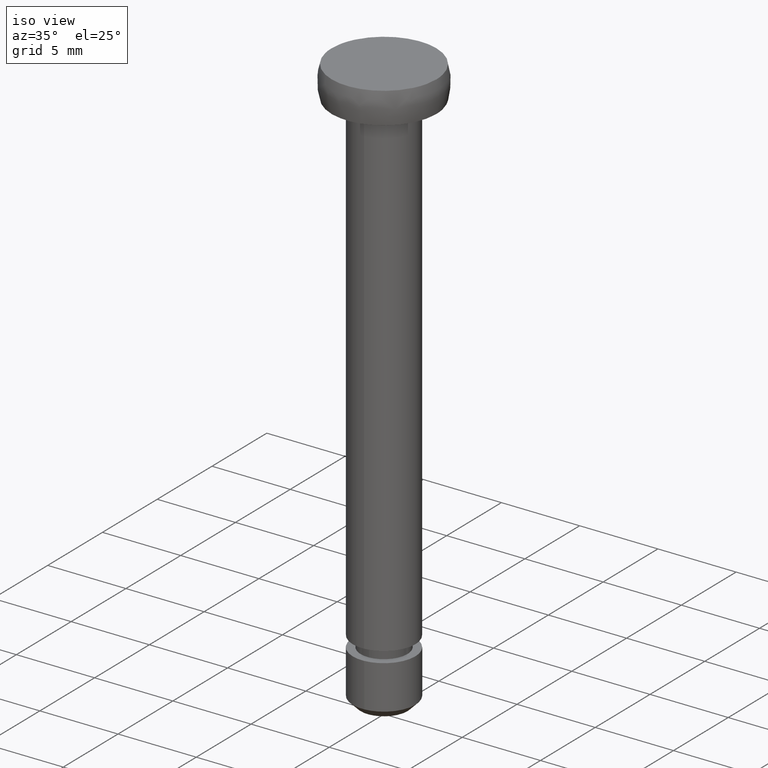
[diagram: clean part render]
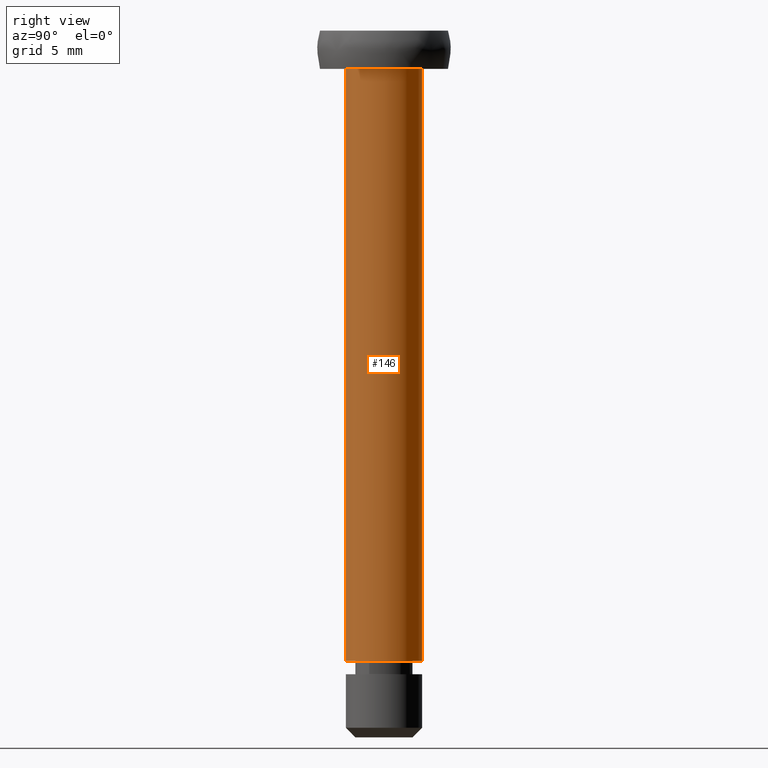
[diagram: tour spotlight — one face highlighted and labeled with its STEP entity id]
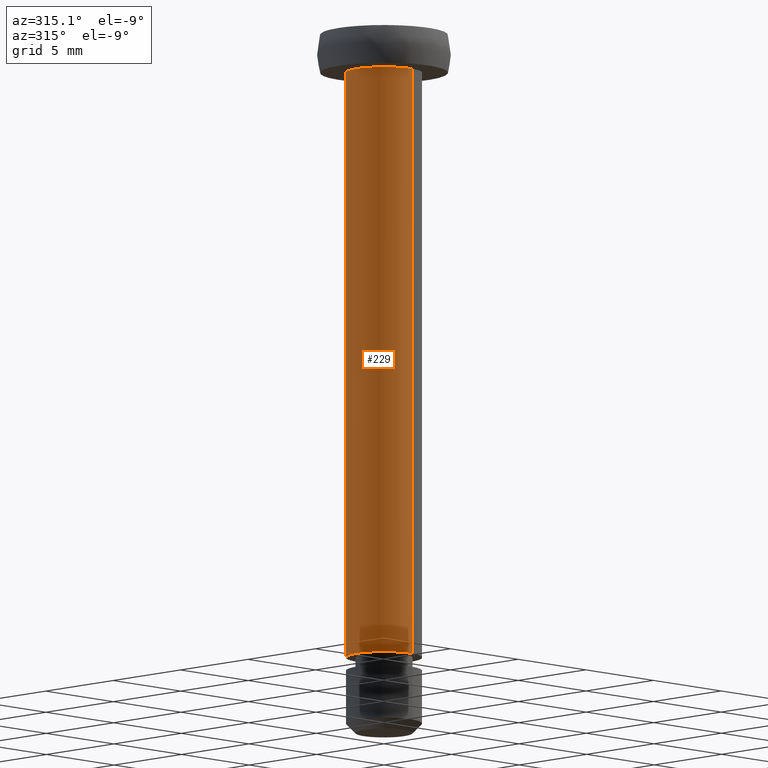
[diagram: tour spotlight — one face highlighted and labeled with its STEP entity id]
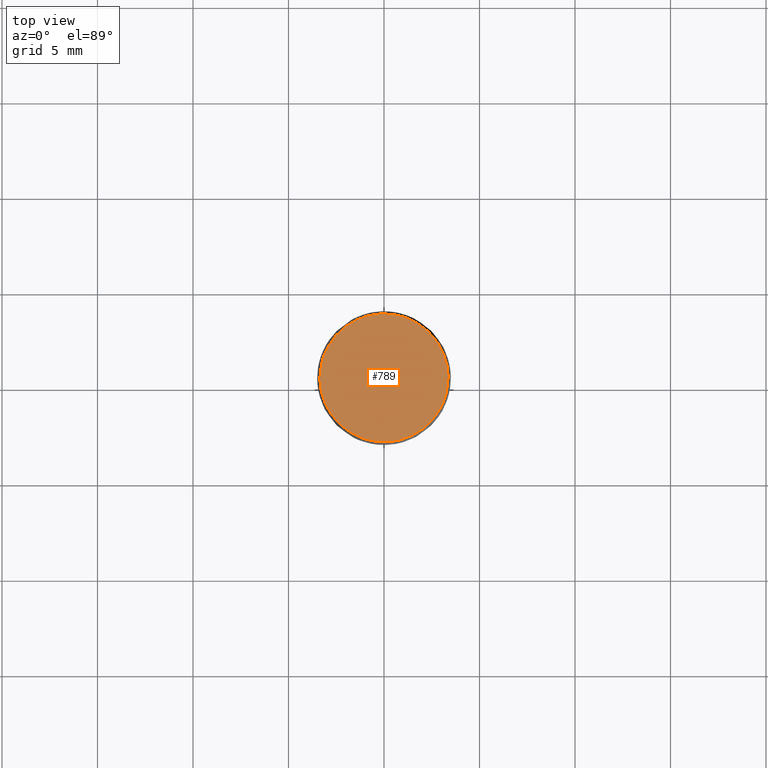
[diagram: tour spotlight — one face highlighted and labeled with its STEP entity id]
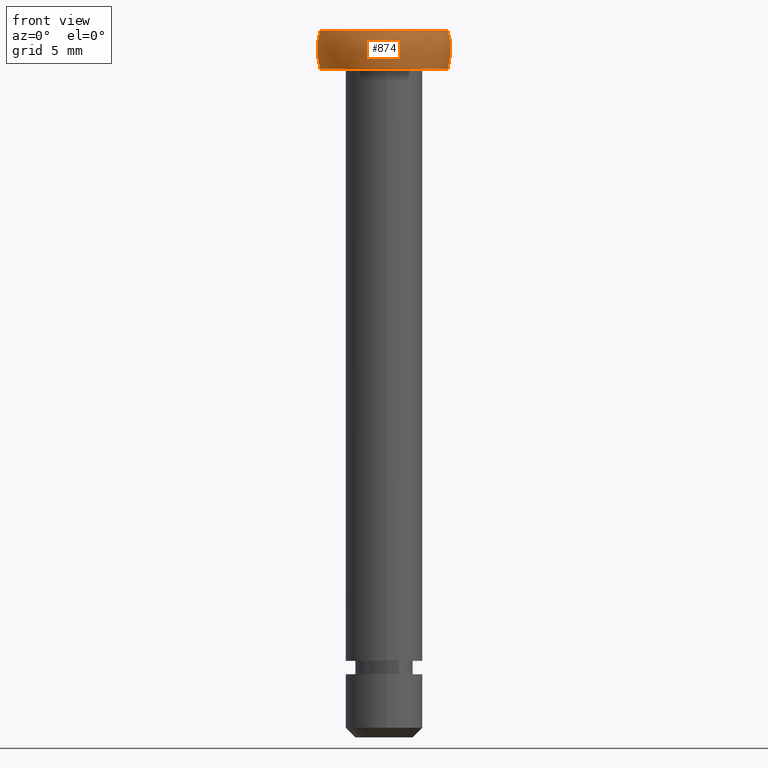
[diagram: tour spotlight — one face highlighted and labeled with its STEP entity id]
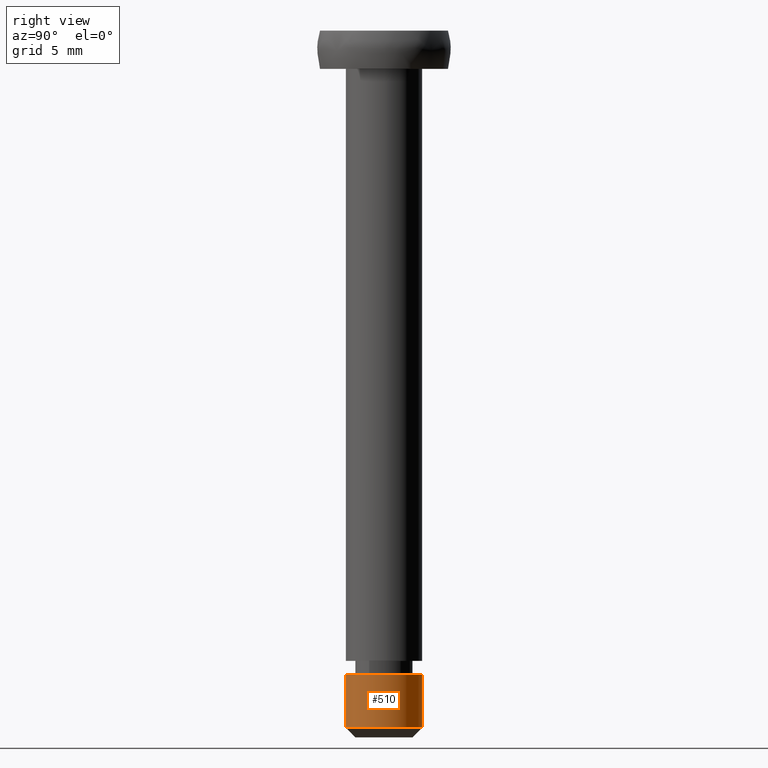
[diagram: tour spotlight — one face highlighted and labeled with its STEP entity id]
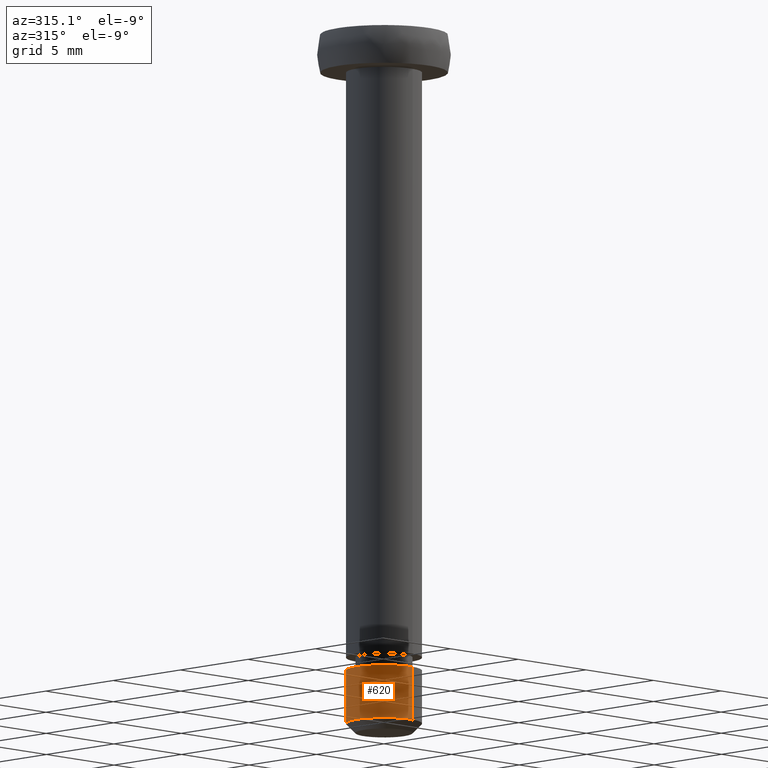
[diagram: tour spotlight — one face highlighted and labeled with its STEP entity id]
A machine part: a face-by-face anatomy tour. The part has 14 B-rep faces; the first image is the clean iso view, then the 6 largest visible faces are spotlighted one at a time (largest first), each with its STEP entity span.

Face 1 — right view, entity #146. In plain terms, the highlighted face is a freeform B-spline surface patch.
Definition (entity closure, byte-faithful):
#44=CARTESIAN_POINT('',(-0.236068469313517,1.986019052727332,35.774999999999999));
#45=CARTESIAN_POINT('',(-0.179229457275955,1.992775230897211,35.775000000000006));
#46=CARTESIAN_POINT('',(-0.122097079069714,1.996269596843733,35.775000000000013));
#47=CARTESIAN_POINT('',(1.874172517774020,2.118366675913447,35.774999999999999));
#48=CARTESIAN_POINT('',(1.996269596843733,0.122097079069714,35.775000000000013));
#49=CARTESIAN_POINT('',(2.118366675913447,-1.874172517774020,35.774999999999999));
#50=CARTESIAN_POINT('',(0.122097079069714,-1.996269596843733,35.775000000000013));
#51=CARTESIAN_POINT('',(-0.236068469313517,1.986019052727332,3.205624999999998));
#52=CARTESIAN_POINT('',(-0.179229457275955,1.992775230897211,3.205624999999998));
#53=CARTESIAN_POINT('',(-0.122097079069714,1.996269596843733,3.205624999999998));
#54=CARTESIAN_POINT('',(1.874172517774020,2.118366675913447,3.205624999999998));
#55=CARTESIAN_POINT('',(1.996269596843733,0.122097079069714,3.205624999999998));
#56=CARTESIAN_POINT('',(2.118366675913447,-1.874172517774020,3.205624999999998));
#57=CARTESIAN_POINT('',(0.122097079069714,-1.996269596843733,3.205624999999998));
#65=(BOUNDED_SURFACE()B_SPLINE_SURFACE(2,1,((#44,#51),(#45,#52),(#46,#53),(#47,#54),(#48,#55),(#49,#56),(#50,#57)),.UNSPECIFIED.,.F.,.F.,.U.)B_SPLINE_SURFACE_WITH_KNOTS((3,2,2,3),(2,2),(0.0,0.132548339959391,3.446256838944149,6.759965337928908),(0.0,32.569375000000022),.UNSPECIFIED.)GEOMETRIC_REPRESENTATION_ITEM()RATIONAL_B_SPLINE_SURFACE(((0.977505800795127,0.977505800795127),(0.988284271247462,0.988284271247462),(1.0,1.0),(0.707106781186548,0.707106781186548),(1.0,1.0),(0.707106781186548,0.707106781186548),(1.0,1.0)))REPRESENTATION_ITEM('')SURFACE());
#66=CARTESIAN_POINT('',(-0.236068469374056,1.986019052720137,35.0));
#67=VERTEX_POINT('',#66);
#68=CARTESIAN_POINT('',(2.0,0.0,35.0));
#69=VERTEX_POINT('',#68);
#70=CARTESIAN_POINT('',(-0.236068469374056,1.986019052720137,35.0));
#71=CARTESIAN_POINT('',(-0.118448239364999,2.000000000000000,35.000000000000007));
#72=CARTESIAN_POINT('',(0.0,2.0,35.0));
#73=CARTESIAN_POINT('',(2.000000000000000,2.000000000000000,34.999999999999993));
#74=CARTESIAN_POINT('',(2.0,0.0,35.0));
#82=(BOUNDED_CURVE()B_SPLINE_CURVE(2,(#70,#71,#72,#73,#74),.UNSPECIFIED.,.F.,.U.)B_SPLINE_CURVE_WITH_KNOTS((3,2,3),(0.229562473505341,0.250000000000000,0.500000000000000),.UNSPECIFIED.)CURVE()GEOMETRIC_REPRESENTATION_ITEM()RATIONAL_B_SPLINE_CURVE((0.956026754167691,0.976055948321576,1.0,0.707106781186548,1.0))REPRESENTATION_ITEM(''));
#83=EDGE_CURVE('',#67,#69,#82,.T.);
#84=ORIENTED_EDGE('',*,*,#83,.T.);
#85=CARTESIAN_POINT('',(0.122094911865677,-1.996269729393249,35.000000000000007));
#86=VERTEX_POINT('',#85);
#87=CARTESIAN_POINT('',(2.0,0.0,35.0));
#88=CARTESIAN_POINT('',(1.999999999999999,-1.881414180140796,34.999999999999993));
#89=CARTESIAN_POINT('',(0.122094911865677,-1.996269729393250,35.000000000000007));
#97=(BOUNDED_CURVE()B_SPLINE_CURVE(2,(#87,#88,#89),.UNSPECIFIED.,.F.,.U.)B_SPLINE_CURVE_WITH_KNOTS((3,3),(0.500000000000000,0.739333149563436),.UNSPECIFIED.)CURVE()GEOMETRIC_REPRESENTATION_ITEM()RATIONAL_B_SPLINE_CURVE((1.0,0.719603773822415,0.976072443139095))REPRESENTATION_ITEM(''));
#98=EDGE_CURVE('',#69,#86,#97,.T.);
#99=ORIENTED_EDGE('',*,*,#98,.T.);
#100=CARTESIAN_POINT('',(0.122094938045630,-1.996269727792072,4.000000000000001));
#101=VERTEX_POINT('',#100);
#102=CARTESIAN_POINT('',(0.122094911865677,-1.996269729393249,35.000000000000007));
#103=CARTESIAN_POINT('',(0.122094938045630,-1.996269727792072,4.000000000000001));
#104=QUASI_UNIFORM_CURVE('',1,(#102,#103),.UNSPECIFIED.,.F.,.U.);
#105=EDGE_CURVE('',#86,#101,#104,.T.);
#106=ORIENTED_EDGE('',*,*,#105,.T.);
#107=CARTESIAN_POINT('',(2.0,0.0,4.0));
#108=VERTEX_POINT('',#107);
#109=CARTESIAN_POINT('',(2.0,0.0,4.0));
#110=CARTESIAN_POINT('',(2.000000000000000,-1.881414155421005,4.000000000000001));
#111=CARTESIAN_POINT('',(0.122094938045630,-1.996269727792072,4.000000000000001));
#119=(BOUNDED_CURVE()B_SPLINE_CURVE(2,(#109,#110,#111),.UNSPECIFIED.,.F.,.U.)B_SPLINE_CURVE_WITH_KNOTS((3,3),(0.500000000000000,0.739333147300582),.UNSPECIFIED.)CURVE()GEOMETRIC_REPRESENTATION_ITEM()RATIONAL_B_SPLINE_CURVE((1.0,0.719603776473514,0.976072438289359))REPRESENTATION_ITEM(''));
#120=EDGE_CURVE('',#108,#101,#119,.T.);
#121=ORIENTED_EDGE('',*,*,#120,.F.);
#122=CARTESIAN_POINT('',(-0.236068469374056,1.986019052720137,3.999999999999999));
#123=VERTEX_POINT('',#122);
#124=CARTESIAN_POINT('',(-0.236068469374056,1.986019052720137,3.999999999999999));
#125=CARTESIAN_POINT('',(-0.118448239364999,2.000000000000000,4.000000000000001));
#126=CARTESIAN_POINT('',(0.0,2.0,4.0));
#127=CARTESIAN_POINT('',(2.000000000000000,2.000000000000000,4.000000000000000));
#128=CARTESIAN_POINT('',(2.0,0.0,4.0));
#136=(BOUNDED_CURVE()B_SPLINE_CURVE(2,(#124,#125,#126,#127,#128),.UNSPECIFIED.,.F.,.U.)B_SPLINE_CURVE_WITH_KNOTS((3,2,3),(0.229562473505341,0.250000000000000,0.500000000000000),.UNSPECIFIED.)CURVE()GEOMETRIC_REPRESENTATION_ITEM()RATIONAL_B_SPLINE_CURVE((0.956026754167691,0.976055948321576,1.0,0.707106781186548,1.0))REPRESENTATION_ITEM(''));
#137=EDGE_CURVE('',#123,#108,#136,.T.);
#138=ORIENTED_EDGE('',*,*,#137,.F.);
#139=CARTESIAN_POINT('',(-0.236068469374056,1.986019052720137,35.0));
#140=CARTESIAN_POINT('',(-0.236068469374056,1.986019052720137,3.999999999999999));
#141=QUASI_UNIFORM_CURVE('',1,(#139,#140),.UNSPECIFIED.,.F.,.U.);
#142=EDGE_CURVE('',#67,#123,#141,.T.);
#143=ORIENTED_EDGE('',*,*,#142,.F.);
#144=EDGE_LOOP('',(#84,#99,#106,#121,#138,#143));
#145=FACE_OUTER_BOUND('',#144,.T.);
#146=ADVANCED_FACE('',(#145),#65,.T.);

Face 2 — auxiliary view, entity #229. In plain terms, the highlighted face is a freeform B-spline surface patch.
Definition (entity closure, byte-faithful):
#66=CARTESIAN_POINT('',(-0.236068469374056,1.986019052720137,35.0));
#67=VERTEX_POINT('',#66);
#85=CARTESIAN_POINT('',(0.122094911865677,-1.996269729393249,35.000000000000007));
#86=VERTEX_POINT('',#85);
#100=CARTESIAN_POINT('',(0.122094938045630,-1.996269727792072,4.000000000000001));
#101=VERTEX_POINT('',#100);
#102=CARTESIAN_POINT('',(0.122094911865677,-1.996269729393249,35.000000000000007));
#103=CARTESIAN_POINT('',(0.122094938045630,-1.996269727792072,4.000000000000001));
#104=QUASI_UNIFORM_CURVE('',1,(#102,#103),.UNSPECIFIED.,.F.,.U.);
#105=EDGE_CURVE('',#86,#101,#104,.T.);
#122=CARTESIAN_POINT('',(-0.236068469374056,1.986019052720137,3.999999999999999));
#123=VERTEX_POINT('',#122);
#139=CARTESIAN_POINT('',(-0.236068469374056,1.986019052720137,35.0));
#140=CARTESIAN_POINT('',(-0.236068469374056,1.986019052720137,3.999999999999999));
#141=QUASI_UNIFORM_CURVE('',1,(#139,#140),.UNSPECIFIED.,.F.,.U.);
#142=EDGE_CURVE('',#67,#123,#141,.T.);
#147=CARTESIAN_POINT('',(0.122097079069714,-1.996269596843733,35.775000000000013));
#148=CARTESIAN_POINT('',(-1.874172517774020,-2.118366675913447,35.774999999999999));
#149=CARTESIAN_POINT('',(-1.996269596843733,-0.122097079069714,35.775000000000013));
#150=CARTESIAN_POINT('',(-2.111572393465055,1.763086981679002,35.775000000000013));
#151=CARTESIAN_POINT('',(-0.236068469313517,1.986019052727332,35.774999999999999));
#152=CARTESIAN_POINT('',(0.122097079069714,-1.996269596843733,3.205624999999998));
#153=CARTESIAN_POINT('',(-1.874172517774020,-2.118366675913447,3.205624999999998));
#154=CARTESIAN_POINT('',(-1.996269596843733,-0.122097079069714,3.205624999999998));
#155=CARTESIAN_POINT('',(-2.111572393465055,1.763086981679002,3.205624999999998));
#156=CARTESIAN_POINT('',(-0.236068469313517,1.986019052727332,3.205624999999998));
#164=(BOUNDED_SURFACE()B_SPLINE_SURFACE(2,1,((#147,#152),(#148,#153),(#149,#154),(#150,#155),(#151,#156)),.UNSPECIFIED.,.F.,.F.,.U.)B_SPLINE_SURFACE_WITH_KNOTS((3,2,3),(2,2),(0.0,3.313708498984759,6.494868658010128),(0.0,32.569375000000008),.UNSPECIFIED.)GEOMETRIC_REPRESENTATION_ITEM()RATIONAL_B_SPLINE_SURFACE(((1.0,1.0),(0.707106781186548,0.707106781186548),(1.0,1.0),(0.718822509939086,0.718822509939086),(0.977505800795127,0.977505800795127)))REPRESENTATION_ITEM('')SURFACE());
#165=CARTESIAN_POINT('',(-2.0,0.0,35.0));
#166=VERTEX_POINT('',#165);
#167=CARTESIAN_POINT('',(-2.0,0.0,35.0));
#168=CARTESIAN_POINT('',(-2.000000000000000,1.776349051793678,34.999999999999993));
#169=CARTESIAN_POINT('',(-0.236068469374056,1.986019052720137,35.000000000000007));
#177=(BOUNDED_CURVE()B_SPLINE_CURVE(2,(#167,#168,#169),.UNSPECIFIED.,.F.,.U.)B_SPLINE_CURVE_WITH_KNOTS((3,3),(0.0,0.229562473505341),.UNSPECIFIED.)CURVE()GEOMETRIC_REPRESENTATION_ITEM()RATIONAL_B_SPLINE_CURVE((1.0,0.731050832864971,0.956026754167691))REPRESENTATION_ITEM(''));
#178=EDGE_CURVE('',#166,#67,#177,.T.);
#179=ORIENTED_EDGE('',*,*,#178,.T.);
#180=ORIENTED_EDGE('',*,*,#142,.T.);
#181=CARTESIAN_POINT('',(-2.0,0.0,4.0));
#182=VERTEX_POINT('',#181);
#183=CARTESIAN_POINT('',(-2.0,0.0,4.0));
#184=CARTESIAN_POINT('',(-2.000000000000000,1.776349051793678,4.0));
#185=CARTESIAN_POINT('',(-0.236068469374056,1.986019052720137,3.999999999999999));
#193=(BOUNDED_CURVE()B_SPLINE_CURVE(2,(#183,#184,#185),.UNSPECIFIED.,.F.,.U.)B_SPLINE_CURVE_WITH_KNOTS((3,3),(0.0,0.229562473505341),.UNSPECIFIED.)CURVE()GEOMETRIC_REPRESENTATION_ITEM()RATIONAL_B_SPLINE_CURVE((1.0,0.731050832864971,0.956026754167691))REPRESENTATION_ITEM(''));
#194=EDGE_CURVE('',#182,#123,#193,.T.);
#195=ORIENTED_EDGE('',*,*,#194,.F.);
#196=CARTESIAN_POINT('',(0.122094938045630,-1.996269727792072,4.000000000000001));
#197=CARTESIAN_POINT('',(0.061104453083612,-2.000000000000000,4.000000000000001));
#198=CARTESIAN_POINT('',(0.0,-2.0,4.0));
#199=CARTESIAN_POINT('',(-2.000000000000000,-2.000000000000000,4.000000000000000));
#200=CARTESIAN_POINT('',(-2.0,0.0,4.0));
#208=(BOUNDED_CURVE()B_SPLINE_CURVE(2,(#196,#197,#198,#199,#200),.UNSPECIFIED.,.F.,.U.)B_SPLINE_CURVE_WITH_KNOTS((3,2,3),(0.739333147300582,0.750000000000000,1.0),.UNSPECIFIED.)CURVE()GEOMETRIC_REPRESENTATION_ITEM()RATIONAL_B_SPLINE_CURVE((0.976072438289359,0.987503004713034,1.0,0.707106781186548,1.0))REPRESENTATION_ITEM(''));
#209=EDGE_CURVE('',#101,#182,#208,.T.);
#210=ORIENTED_EDGE('',*,*,#209,.F.);
#211=ORIENTED_EDGE('',*,*,#105,.F.);
#212=CARTESIAN_POINT('',(0.122094911865677,-1.996269729393250,35.000000000000007));
#213=CARTESIAN_POINT('',(0.061104439956935,-2.000000000000000,35.0));
#214=CARTESIAN_POINT('',(0.0,-2.0,35.0));
#215=CARTESIAN_POINT('',(-2.000000000000000,-2.000000000000000,34.999999999999993));
#216=CARTESIAN_POINT('',(-2.0,0.0,35.0));
#224=(BOUNDED_CURVE()B_SPLINE_CURVE(2,(#212,#213,#214,#215,#216),.UNSPECIFIED.,.F.,.U.)B_SPLINE_CURVE_WITH_KNOTS((3,2,3),(0.739333149563436,0.750000000000000,1.0),.UNSPECIFIED.)CURVE()GEOMETRIC_REPRESENTATION_ITEM()RATIONAL_B_SPLINE_CURVE((0.976072443139095,0.987503007364133,1.0,0.707106781186548,1.0))REPRESENTATION_ITEM(''));
#225=EDGE_CURVE('',#86,#166,#224,.T.);
#226=ORIENTED_EDGE('',*,*,#225,.T.);
#227=EDGE_LOOP('',(#179,#180,#195,#210,#211,#226));
#228=FACE_OUTER_BOUND('',#227,.T.);
#229=ADVANCED_FACE('',(#228),#164,.T.);

Face 3 — top view, entity #789. In plain terms, the highlighted face is a freeform B-spline surface patch.
Definition (entity closure, byte-faithful):
#748=CARTESIAN_POINT('',(-3.689176669006852,-3.689176669006838,37.000000011736653));
#749=CARTESIAN_POINT('',(3.689176908910919,-3.689176669006838,37.000000011736653));
#750=CARTESIAN_POINT('',(-3.689176669006852,3.689176908910905,37.000000011736653));
#751=CARTESIAN_POINT('',(3.689176908910919,3.689176908910905,37.000000011736653));
#752=B_SPLINE_SURFACE_WITH_KNOTS('',1,1,((#748,#750),(#749,#751)),.UNSPECIFIED.,.F.,.F.,.U.,(2,2),(2,2),(0.0,7.378353577917771),(0.0,7.378353577917744),.UNSPECIFIED.);
#753=CARTESIAN_POINT('',(3.354101959251270,0.0,37.000000023473397));
#754=VERTEX_POINT('',#753);
#755=CARTESIAN_POINT('',(-3.354101959251270,0.0,37.000000023473397));
#756=VERTEX_POINT('',#755);
#757=CARTESIAN_POINT('',(3.354101959251270,0.0,37.000000023473397));
#758=CARTESIAN_POINT('',(3.354101959251270,-3.354101959251270,37.000000023473390));
#759=CARTESIAN_POINT('',(0.0,-3.354101959251270,37.000000023473397));
#760=CARTESIAN_POINT('',(-3.354101959251270,-3.354101959251270,37.000000023473390));
#761=CARTESIAN_POINT('',(-3.354101959251270,0.0,37.000000023473397));
#769=(BOUNDED_CURVE()B_SPLINE_CURVE(2,(#757,#758,#759,#760,#761),.UNSPECIFIED.,.F.,.U.)B_SPLINE_CURVE_WITH_KNOTS((3,2,3),(0.500000000000000,0.750000000000000,1.0),.UNSPECIFIED.)CURVE()GEOMETRIC_REPRESENTATION_ITEM()RATIONAL_B_SPLINE_CURVE((1.0,0.707106781186547,1.0,0.707106781186547,1.0))REPRESENTATION_ITEM(''));
#770=EDGE_CURVE('',#754,#756,#769,.T.);
#771=ORIENTED_EDGE('',*,*,#770,.F.);
#772=CARTESIAN_POINT('',(-3.354101959251270,0.0,37.000000023473397));
#773=CARTESIAN_POINT('',(-3.354101959251270,3.354101959251270,37.000000023473390));
#774=CARTESIAN_POINT('',(0.0,3.354101959251270,37.000000023473397));
#775=CARTESIAN_POINT('',(3.354101959251270,3.354101959251270,37.000000023473390));
#776=CARTESIAN_POINT('',(3.354101959251270,0.0,37.000000023473397));
#784=(BOUNDED_CURVE()B_SPLINE_CURVE(2,(#772,#773,#774,#775,#776),.UNSPECIFIED.,.F.,.U.)B_SPLINE_CURVE_WITH_KNOTS((3,2,3),(0.0,0.250000000000000,0.500000000000000),.UNSPECIFIED.)CURVE()GEOMETRIC_REPRESENTATION_ITEM()RATIONAL_B_SPLINE_CURVE((1.0,0.707106781186547,1.0,0.707106781186547,1.0))REPRESENTATION_ITEM(''));
#785=EDGE_CURVE('',#756,#754,#784,.T.);
#786=ORIENTED_EDGE('',*,*,#785,.F.);
#787=EDGE_LOOP('',(#771,#786));
#788=FACE_OUTER_BOUND('',#787,.T.);
#789=ADVANCED_FACE('',(#788),#752,.T.);

Face 4 — front view, entity #874. In plain terms, the highlighted face is a freeform B-spline surface patch.
Definition (entity closure, byte-faithful):
#753=CARTESIAN_POINT('',(3.354101959251270,0.0,37.000000023473397));
#754=VERTEX_POINT('',#753);
#755=CARTESIAN_POINT('',(-3.354101959251270,0.0,37.000000023473397));
#756=VERTEX_POINT('',#755);
#757=CARTESIAN_POINT('',(3.354101959251270,0.0,37.000000023473397));
#758=CARTESIAN_POINT('',(3.354101959251270,-3.354101959251270,37.000000023473390));
#759=CARTESIAN_POINT('',(0.0,-3.354101959251270,37.000000023473397));
#760=CARTESIAN_POINT('',(-3.354101959251270,-3.354101959251270,37.000000023473390));
#761=CARTESIAN_POINT('',(-3.354101959251270,0.0,37.000000023473397));
#769=(BOUNDED_CURVE()B_SPLINE_CURVE(2,(#757,#758,#759,#760,#761),.UNSPECIFIED.,.F.,.U.)B_SPLINE_CURVE_WITH_KNOTS((3,2,3),(0.500000000000000,0.750000000000000,1.0),.UNSPECIFIED.)CURVE()GEOMETRIC_REPRESENTATION_ITEM()RATIONAL_B_SPLINE_CURVE((1.0,0.707106781186547,1.0,0.707106781186547,1.0))REPRESENTATION_ITEM(''));
#770=EDGE_CURVE('',#754,#756,#769,.T.);
#772=CARTESIAN_POINT('',(-3.354101959251270,0.0,37.000000023473397));
#773=CARTESIAN_POINT('',(-3.354101959251270,3.354101959251270,37.000000023473390));
#774=CARTESIAN_POINT('',(0.0,3.354101959251270,37.000000023473397));
#775=CARTESIAN_POINT('',(3.354101959251270,3.354101959251270,37.000000023473390));
#776=CARTESIAN_POINT('',(3.354101959251270,0.0,37.000000023473397));
#784=(BOUNDED_CURVE()B_SPLINE_CURVE(2,(#772,#773,#774,#775,#776),.UNSPECIFIED.,.F.,.U.)B_SPLINE_CURVE_WITH_KNOTS((3,2,3),(0.0,0.250000000000000,0.500000000000000),.UNSPECIFIED.)CURVE()GEOMETRIC_REPRESENTATION_ITEM()RATIONAL_B_SPLINE_CURVE((1.0,0.707106781186547,1.0,0.707106781186547,1.0))REPRESENTATION_ITEM(''));
#785=EDGE_CURVE('',#756,#754,#784,.T.);
#790=CARTESIAN_POINT('',(-1.997924539567871,1.997924539567871,38.065573786720051));
#791=CARTESIAN_POINT('',(-1.870180005142694,2.493573340190259,37.709718689035888));
#792=CARTESIAN_POINT('',(-0.829070728898847,3.316282915595388,37.119047641403220));
#793=CARTESIAN_POINT('',(0.829070728898847,3.316282915595388,37.119047641403220));
#794=CARTESIAN_POINT('',(1.870180005142694,2.493573340190259,37.709718689035888));
#795=CARTESIAN_POINT('',(1.997924539567871,1.997924539567871,38.065573786720051));
#796=CARTESIAN_POINT('',(-2.493573340190259,1.870180005142694,37.709718689035888));
#797=CARTESIAN_POINT('',(-2.487212186696541,2.487212186696541,37.119047641403220));
#798=CARTESIAN_POINT('',(-1.237293375010815,3.711880125032445,35.946700532509595));
#799=CARTESIAN_POINT('',(1.237293375010815,3.711880125032445,35.946700532509595));
#800=CARTESIAN_POINT('',(2.487212186696541,2.487212186696541,37.119047641403220));
#801=CARTESIAN_POINT('',(2.493573340190259,1.870180005142694,37.709718689035888));
#802=CARTESIAN_POINT('',(-3.316282915595388,0.829070728898847,37.119047641403220));
#803=CARTESIAN_POINT('',(-3.711880125032445,1.237293375010815,35.946700532509595));
#804=CARTESIAN_POINT('',(-2.437467965848872,2.437467965848872,32.500000000000000));
#805=CARTESIAN_POINT('',(2.437467965848872,2.437467965848872,32.500000000000000));
#806=CARTESIAN_POINT('',(3.711880125032445,1.237293375010815,35.946700532509595));
#807=CARTESIAN_POINT('',(3.316282915595388,0.829070728898847,37.119047641403220));
#808=CARTESIAN_POINT('',(-3.316282915595388,-0.829070728898847,37.119047641403220));
#809=CARTESIAN_POINT('',(-3.711880125032445,-1.237293375010815,35.946700532509595));
#810=CARTESIAN_POINT('',(-2.437467965848872,-2.437467965848872,32.500000000000000));
#811=CARTESIAN_POINT('',(2.437467965848872,-2.437467965848872,32.500000000000000));
#812=CARTESIAN_POINT('',(3.711880125032445,-1.237293375010815,35.946700532509595));
#813=CARTESIAN_POINT('',(3.316282915595388,-0.829070728898847,37.119047641403220));
#814=CARTESIAN_POINT('',(-2.493573340190259,-1.870180005142694,37.709718689035888));
#815=CARTESIAN_POINT('',(-2.487212186696541,-2.487212186696541,37.119047641403220));
#816=CARTESIAN_POINT('',(-1.237293375010815,-3.711880125032445,35.946700532509595));
#817=CARTESIAN_POINT('',(1.237293375010815,-3.711880125032445,35.946700532509595));
#818=CARTESIAN_POINT('',(2.487212186696541,-2.487212186696541,37.119047641403220));
#819=CARTESIAN_POINT('',(2.493573340190259,-1.870180005142694,37.709718689035888));
#820=CARTESIAN_POINT('',(-1.997924539567871,-1.997924539567871,38.065573786720051));
#821=CARTESIAN_POINT('',(-1.870180005142694,-2.493573340190259,37.709718689035888));
#822=CARTESIAN_POINT('',(-0.829070728898847,-3.316282915595388,37.119047641403220));
#823=CARTESIAN_POINT('',(0.829070728898847,-3.316282915595388,37.119047641403220));
#824=CARTESIAN_POINT('',(1.870180005142694,-2.493573340190259,37.709718689035888));
#825=CARTESIAN_POINT('',(1.997924539567871,-1.997924539567871,38.065573786720051));
#833=(BOUNDED_SURFACE()B_SPLINE_SURFACE(2,2,((#790,#796,#802,#808,#814,#820),(#791,#797,#803,#809,#815,#821),(#792,#798,#804,#810,#816,#822),(#793,#799,#805,#811,#817,#823),(#794,#800,#806,#812,#818,#824),(#795,#801,#807,#813,#819,#825)),.UNSPECIFIED.,.F.,.F.,.U.)B_SPLINE_SURFACE_WITH_KNOTS((3,1,1,1,3),(3,1,1,1,3),(0.0,3.923489672562895,7.846979345125789,11.770469017688690,15.693958690251581),(0.0,3.923489672562895,7.846979345125789,11.770469017688690,15.693958690251581),.UNSPECIFIED.)GEOMETRIC_REPRESENTATION_ITEM()RATIONAL_B_SPLINE_SURFACE(((4.880000055209430,3.910000041407073,2.940000027604715,2.940000027604715,3.910000041407073,4.880000055209430),(3.910000041407073,2.940000027604715,1.970000013802358,1.970000013802358,2.940000027604715,3.910000041407073),(2.940000027604715,1.970000013802358,1.0,1.0,1.970000013802358,2.940000027604715),(2.940000027604715,1.970000013802358,1.0,1.0,1.970000013802358,2.940000027604715),(3.910000041407073,2.940000027604715,1.970000013802358,1.970000013802358,2.940000027604715,3.910000041407073),(4.880000055209430,3.910000041407073,2.940000027604715,2.940000027604715,3.910000041407073,4.880000055209430)))REPRESENTATION_ITEM('')SURFACE());
#834=ORIENTED_EDGE('',*,*,#785,.T.);
#835=ORIENTED_EDGE('',*,*,#770,.T.);
#836=EDGE_LOOP('',(#834,#835));
#837=FACE_OUTER_BOUND('',#836,.T.);
#838=CARTESIAN_POINT('',(-3.354101000000000,0.0,35.0));
#839=VERTEX_POINT('',#838);
#840=CARTESIAN_POINT('',(3.354101000000000,0.0,35.0));
#841=VERTEX_POINT('',#840);
#842=CARTESIAN_POINT('',(-3.354101000000000,0.0,35.0));
#843=CARTESIAN_POINT('',(-3.354101000000000,3.354101000000000,35.0));
#844=CARTESIAN_POINT('',(0.0,3.354101000000000,35.0));
#845=CARTESIAN_POINT('',(3.354101000000000,3.354101000000000,35.0));
#846=CARTESIAN_POINT('',(3.354101000000000,0.0,35.0));
#854=(BOUNDED_CURVE()B_SPLINE_CURVE(2,(#842,#843,#844,#845,#846),.UNSPECIFIED.,.F.,.U.)B_SPLINE_CURVE_WITH_KNOTS((3,2,3),(0.0,0.250000000000000,0.500000000000000),.UNSPECIFIED.)CURVE()GEOMETRIC_REPRESENTATION_ITEM()RATIONAL_B_SPLINE_CURVE((1.0,0.707106781186547,1.0,0.707106781186547,1.0))REPRESENTATION_ITEM(''));
#855=EDGE_CURVE('',#839,#841,#854,.T.);
#856=ORIENTED_EDGE('',*,*,#855,.F.);
#857=CARTESIAN_POINT('',(3.354101000000000,0.0,35.0));
#858=CARTESIAN_POINT('',(3.354101000000000,-3.354101000000000,35.0));
#859=CARTESIAN_POINT('',(0.0,-3.354101000000000,35.0));
#860=CARTESIAN_POINT('',(-3.354101000000000,-3.354101000000000,35.0));
#861=CARTESIAN_POINT('',(-3.354101000000000,0.0,35.0));
#869=(BOUNDED_CURVE()B_SPLINE_CURVE(2,(#857,#858,#859,#860,#861),.UNSPECIFIED.,.F.,.U.)B_SPLINE_CURVE_WITH_KNOTS((3,2,3),(0.500000000000000,0.750000000000000,1.0),.UNSPECIFIED.)CURVE()GEOMETRIC_REPRESENTATION_ITEM()RATIONAL_B_SPLINE_CURVE((1.0,0.707106781186547,1.0,0.707106781186547,1.0))REPRESENTATION_ITEM(''));
#870=EDGE_CURVE('',#841,#839,#869,.T.);
#871=ORIENTED_EDGE('',*,*,#870,.F.);
#872=EDGE_LOOP('',(#856,#871));
#873=FACE_BOUND('',#872,.T.);
#874=ADVANCED_FACE('',(#837,#873),#833,.T.);

Face 5 — right view, entity #510. In plain terms, the highlighted face is a freeform B-spline surface patch.
Definition (entity closure, byte-faithful):
#416=CARTESIAN_POINT('',(0.228201329480721,1.986938386871427,3.370003075000001));
#417=CARTESIAN_POINT('',(1.893911919826415,1.795630305172163,3.370003075000001));
#418=CARTESIAN_POINT('',(1.996269596843733,0.122097079069714,3.370003075000001));
#419=CARTESIAN_POINT('',(2.118366675913447,-1.874172517774020,3.370003075000001));
#420=CARTESIAN_POINT('',(0.122097079069714,-1.996269596843733,3.370003075000001));
#421=CARTESIAN_POINT('',(0.228201329480721,1.986938386871427,0.428249923124985));
#422=CARTESIAN_POINT('',(1.893911919826415,1.795630305172163,0.428249923124985));
#423=CARTESIAN_POINT('',(1.996269596843733,0.122097079069714,0.428249923124985));
#424=CARTESIAN_POINT('',(2.118366675913447,-1.874172517774020,0.428249923124985));
#425=CARTESIAN_POINT('',(0.122097079069714,-1.996269596843733,0.428249923124985));
#433=(BOUNDED_SURFACE()B_SPLINE_SURFACE(2,1,((#416,#421),(#417,#422),(#418,#423),(#419,#424),(#420,#425)),.UNSPECIFIED.,.F.,.F.,.U.)B_SPLINE_SURFACE_WITH_KNOTS((3,2,3),(2,2),(0.0,2.916063479106587,6.229771978091346),(0.0,2.941753151875016),.UNSPECIFIED.)GEOMETRIC_REPRESENTATION_ITEM()RATIONAL_B_SPLINE_SURFACE(((0.938140952186599,0.938140952186599),(0.742253967444162,0.742253967444162),(1.0,1.0),(0.707106781186548,0.707106781186548),(1.0,1.0)))REPRESENTATION_ITEM('')SURFACE());
#434=CARTESIAN_POINT('',(0.228201329546129,1.986938386863915,0.499999999999986));
#435=VERTEX_POINT('',#434);
#436=CARTESIAN_POINT('',(2.0,0.0,0.499999999999986));
#437=VERTEX_POINT('',#436);
#438=CARTESIAN_POINT('',(0.228201329546129,1.986938386863915,0.499999999999986));
#439=CARTESIAN_POINT('',(2.0,1.783446011319636,0.499999999999986));
#440=CARTESIAN_POINT('',(2.0,0.0,0.499999999999986));
#448=(BOUNDED_CURVE()B_SPLINE_CURVE(2,(#438,#439,#440),.UNSPECIFIED.,.F.,.U.)B_SPLINE_CURVE_WITH_KNOTS((3,3),(0.269767755887751,0.500000000000000),.UNSPECIFIED.)CURVE()GEOMETRIC_REPRESENTATION_ITEM()RATIONAL_B_SPLINE_CURVE((0.957343736438685,0.730266147789276,1.0))REPRESENTATION_ITEM(''));
#449=EDGE_CURVE('',#435,#437,#448,.T.);
#450=ORIENTED_EDGE('',*,*,#449,.F.);
#451=CARTESIAN_POINT('',(0.228201329553121,1.986938386863112,3.300003000000000));
#452=VERTEX_POINT('',#451);
#453=CARTESIAN_POINT('',(0.228201329553121,1.986938386863112,3.300003000000000));
#454=CARTESIAN_POINT('',(0.228201329546129,1.986938386863915,0.499999999999986));
#455=QUASI_UNIFORM_CURVE('',1,(#453,#454),.UNSPECIFIED.,.F.,.U.);
#456=EDGE_CURVE('',#452,#435,#455,.T.);
#457=ORIENTED_EDGE('',*,*,#456,.F.);
#458=CARTESIAN_POINT('',(2.0,0.0,3.300003000000000));
#459=VERTEX_POINT('',#458);
#460=CARTESIAN_POINT('',(0.228201329553121,1.986938386863113,3.300003000000000));
#461=CARTESIAN_POINT('',(2.000000000000000,1.783446011307003,3.300003000000000));
#462=CARTESIAN_POINT('',(2.0,0.0,3.300003000000000));
#470=(BOUNDED_CURVE()B_SPLINE_CURVE(2,(#460,#461,#462),.UNSPECIFIED.,.F.,.U.)B_SPLINE_CURVE_WITH_KNOTS((3,3),(0.269767755888942,0.500000000000000),.UNSPECIFIED.)CURVE()GEOMETRIC_REPRESENTATION_ITEM()RATIONAL_B_SPLINE_CURVE((0.957343736436335,0.730266147790671,1.0))REPRESENTATION_ITEM(''));
#471=EDGE_CURVE('',#452,#459,#470,.T.);
#472=ORIENTED_EDGE('',*,*,#471,.T.);
#473=CARTESIAN_POINT('',(0.122097270444627,-1.996269585138724,3.300003000000000));
#474=VERTEX_POINT('',#473);
#475=CARTESIAN_POINT('',(2.0,0.0,3.300003000000000));
#476=CARTESIAN_POINT('',(1.999999999999999,-1.881411772409431,3.300003000000001));
#477=CARTESIAN_POINT('',(0.122097270444627,-1.996269585138724,3.300003000000001));
#485=(BOUNDED_CURVE()B_SPLINE_CURVE(2,(#475,#476,#477),.UNSPECIFIED.,.F.,.U.)B_SPLINE_CURVE_WITH_KNOTS((3,3),(0.500000000000000,0.739332929159137),.UNSPECIFIED.)CURVE()GEOMETRIC_REPRESENTATION_ITEM()RATIONAL_B_SPLINE_CURVE((1.0,0.719604032042113,0.976071970770408))REPRESENTATION_ITEM(''));
#486=EDGE_CURVE('',#459,#474,#485,.T.);
#487=ORIENTED_EDGE('',*,*,#486,.T.);
#488=CARTESIAN_POINT('',(0.139507635269696,-1.995052132155349,0.500000000000888));
#489=VERTEX_POINT('',#488);
#490=CARTESIAN_POINT('',(0.122097270444627,-1.996269585138724,3.300003000000000));
#491=CARTESIAN_POINT('',(0.139507635269696,-1.995052132155349,0.500000000000888));
#492=QUASI_UNIFORM_CURVE('',1,(#490,#491),.UNSPECIFIED.,.F.,.U.);
#493=EDGE_CURVE('',#474,#489,#492,.T.);
#494=ORIENTED_EDGE('',*,*,#493,.T.);
#495=CARTESIAN_POINT('',(2.0,0.0,0.499999999999986));
#496=CARTESIAN_POINT('',(1.999997343887232,-1.864992188086876,0.500000000000437));
#497=CARTESIAN_POINT('',(0.139507635269696,-1.995052132155349,0.500000000000888));
#505=(BOUNDED_CURVE()B_SPLINE_CURVE(2,(#495,#496,#497),.UNSPECIFIED.,.F.,.U.)B_SPLINE_CURVE_WITH_KNOTS((3,3),(0.500000000000000,0.737829682996365),.UNSPECIFIED.)CURVE()GEOMETRIC_REPRESENTATION_ITEM()RATIONAL_B_SPLINE_CURVE((1.0,0.721365194471247,0.972871408707751))REPRESENTATION_ITEM(''));
#506=EDGE_CURVE('',#437,#489,#505,.T.);
#507=ORIENTED_EDGE('',*,*,#506,.F.);
#508=EDGE_LOOP('',(#450,#457,#472,#487,#494,#507));
#509=FACE_OUTER_BOUND('',#508,.T.);
#510=ADVANCED_FACE('',(#509),#433,.T.);

Face 6 — auxiliary view, entity #620. In plain terms, the highlighted face is a freeform B-spline surface patch.
Definition (entity closure, byte-faithful):
#434=CARTESIAN_POINT('',(0.228201329546129,1.986938386863915,0.499999999999986));
#435=VERTEX_POINT('',#434);
#451=CARTESIAN_POINT('',(0.228201329553121,1.986938386863112,3.300003000000000));
#452=VERTEX_POINT('',#451);
#453=CARTESIAN_POINT('',(0.228201329553121,1.986938386863112,3.300003000000000));
#454=CARTESIAN_POINT('',(0.228201329546129,1.986938386863915,0.499999999999986));
#455=QUASI_UNIFORM_CURVE('',1,(#453,#454),.UNSPECIFIED.,.F.,.U.);
#456=EDGE_CURVE('',#452,#435,#455,.T.);
#473=CARTESIAN_POINT('',(0.122097270444627,-1.996269585138724,3.300003000000000));
#474=VERTEX_POINT('',#473);
#488=CARTESIAN_POINT('',(0.139507635269696,-1.995052132155349,0.500000000000888));
#489=VERTEX_POINT('',#488);
#490=CARTESIAN_POINT('',(0.122097270444627,-1.996269585138724,3.300003000000000));
#491=CARTESIAN_POINT('',(0.139507635269696,-1.995052132155349,0.500000000000888));
#492=QUASI_UNIFORM_CURVE('',1,(#490,#491),.UNSPECIFIED.,.F.,.U.);
#493=EDGE_CURVE('',#474,#489,#492,.T.);
#511=CARTESIAN_POINT('',(0.169067162341419,-1.993396783482150,3.370003075000001));
#512=CARTESIAN_POINT('',(0.145697123735198,-1.994826156276324,3.370003075000002));
#513=CARTESIAN_POINT('',(-1.874172517774020,-2.118366675913447,3.370003075000001));
#514=CARTESIAN_POINT('',(-1.996269596843733,-0.122097079069714,3.370003075000001));
#515=CARTESIAN_POINT('',(-2.118366675913447,1.874172517774020,3.370003075000001));
#516=CARTESIAN_POINT('',(-0.122097079069714,1.996269596843733,3.370003075000001));
#517=CARTESIAN_POINT('',(0.053462436193093,2.007007276789556,3.370003075000001));
#518=CARTESIAN_POINT('',(0.244162554987188,1.985105228427872,3.370003075000001));
#519=CARTESIAN_POINT('',(0.260204711626136,1.983262774984456,3.370003075000001));
#520=CARTESIAN_POINT('',(0.169067162341419,-1.993396783482150,0.428249923124985));
#521=CARTESIAN_POINT('',(0.145697123735198,-1.994826156276324,0.428249923124985));
#522=CARTESIAN_POINT('',(-1.874172517774020,-2.118366675913447,0.428249923124985));
#523=CARTESIAN_POINT('',(-1.996269596843733,-0.122097079069714,0.428249923124985));
#524=CARTESIAN_POINT('',(-2.118366675913447,1.874172517774020,0.428249923124985));
#525=CARTESIAN_POINT('',(-0.122097079069714,1.996269596843733,0.428249923124985));
#526=CARTESIAN_POINT('',(0.053462436193093,2.007007276789556,0.428249923124985));
#527=CARTESIAN_POINT('',(0.244162554987188,1.985105228427872,0.428249923124985));
#528=CARTESIAN_POINT('',(0.260204711626136,1.983262774984456,0.428249923124985));
#536=(BOUNDED_SURFACE()B_SPLINE_SURFACE(2,1,((#511,#520),(#512,#521),(#513,#522),(#514,#523),(#515,#524),(#516,#525),(#517,#526),(#518,#527),(#519,#528)),.UNSPECIFIED.,.F.,.F.,.U.)B_SPLINE_SURFACE_WITH_KNOTS((3,1,2,2,1,3),(2,2),(0.0,0.055674309130212,3.369382808114971,6.683091307099731,7.080736326977903,7.115963870190234),(0.0,2.941753151875017),.UNSPECIFIED.)GEOMETRIC_REPRESENTATION_ITEM()RATIONAL_B_SPLINE_SURFACE(((1.009841920380962,1.009841920380962),(1.004920960190481,1.004920960190481),(0.707106781186548,0.707106781186548),(1.0,1.0),(0.707106781186548,0.707106781186548),(1.0,1.0),(0.964852813742386,0.964852813742386),(0.935774536891050,0.935774536891050),(0.933408121595502,0.933408121595502)))REPRESENTATION_ITEM('')SURFACE());
#537=CARTESIAN_POINT('',(-0.156918191469679,1.993834667466965,0.500000000001790));
#538=VERTEX_POINT('',#537);
#539=CARTESIAN_POINT('',(-0.156918191469679,1.993834667466965,0.500000000001790));
#540=CARTESIAN_POINT('',(-0.078580214029250,2.000000000000000,0.499999999999986));
#541=CARTESIAN_POINT('',(0.0,2.0,0.499999999999986));
#542=CARTESIAN_POINT('',(0.114474470116638,2.000000000000000,0.499999999999986));
#543=CARTESIAN_POINT('',(0.228201329546129,1.986938386863915,0.499999999999986));
#551=(BOUNDED_CURVE()B_SPLINE_CURVE(2,(#539,#540,#541,#542,#543),.UNSPECIFIED.,.F.,.U.)B_SPLINE_CURVE_WITH_KNOTS((3,2,3),(0.236331300630386,0.250000000000000,0.269767755887751),.UNSPECIFIED.)CURVE()GEOMETRIC_REPRESENTATION_ITEM()RATIONAL_B_SPLINE_CURVE((0.969723356166846,0.983986122578561,1.0,0.976840633397272,0.957343736438685))REPRESENTATION_ITEM(''));
#552=EDGE_CURVE('',#538,#435,#551,.T.);
#553=ORIENTED_EDGE('',*,*,#552,.F.);
#554=CARTESIAN_POINT('',(-2.0,0.0,0.499999999999986));
#555=VERTEX_POINT('',#554);
#556=CARTESIAN_POINT('',(-2.0,0.0,0.499999999999986));
#557=CARTESIAN_POINT('',(-2.0,1.848780983290655,0.499999999999986));
#558=CARTESIAN_POINT('',(-0.156918191469679,1.993834667466965,0.500000000001790));
#566=(BOUNDED_CURVE()B_SPLINE_CURVE(2,(#556,#557,#558),.UNSPECIFIED.,.F.,.U.)B_SPLINE_CURVE_WITH_KNOTS((3,3),(0.0,0.236331300630386),.UNSPECIFIED.)CURVE()GEOMETRIC_REPRESENTATION_ITEM()RATIONAL_B_SPLINE_CURVE((1.0,0.723120658607986,0.969723356166846))REPRESENTATION_ITEM(''));
#567=EDGE_CURVE('',#555,#538,#566,.T.);
#568=ORIENTED_EDGE('',*,*,#567,.F.);
#569=CARTESIAN_POINT('',(0.139507635269696,-1.995052132155349,0.500000000000888));
#570=CARTESIAN_POINT('',(0.069836313255503,-1.999925268558572,0.500000000000874));
#571=CARTESIAN_POINT('',(-0.000005132977994,-1.999926594995433,0.500000000000858));
#572=CARTESIAN_POINT('',(-2.000002476865227,-1.999964579177339,0.500000000000407));
#573=CARTESIAN_POINT('',(-2.0,0.0,0.499999999999986));
#581=(BOUNDED_CURVE()B_SPLINE_CURVE(2,(#569,#570,#571,#572,#573),.UNSPECIFIED.,.F.,.U.)B_SPLINE_CURVE_WITH_KNOTS((3,2,3),(0.737829682996365,0.750000000000000,1.0),.UNSPECIFIED.)CURVE()GEOMETRIC_REPRESENTATION_ITEM()RATIONAL_B_SPLINE_CURVE((0.972871408707751,0.985741586715301,1.0,0.707106781186548,1.0))REPRESENTATION_ITEM(''));
#582=EDGE_CURVE('',#489,#555,#581,.T.);
#583=ORIENTED_EDGE('',*,*,#582,.F.);
#584=ORIENTED_EDGE('',*,*,#493,.F.);
#585=CARTESIAN_POINT('',(-2.0,0.0,3.300003000000000));
#586=VERTEX_POINT('',#585);
#587=CARTESIAN_POINT('',(0.122097270444627,-1.996269585138724,3.300003000000000));
#588=CARTESIAN_POINT('',(0.061105718508690,-2.000000000000000,3.300003000000000));
#589=CARTESIAN_POINT('',(0.0,-2.0,3.300003000000000));
#590=CARTESIAN_POINT('',(-2.000000000000000,-2.000000000000000,3.300003000000001));
#591=CARTESIAN_POINT('',(-2.0,0.0,3.300003000000000));
#599=(BOUNDED_CURVE()B_SPLINE_CURVE(2,(#587,#588,#589,#590,#591),.UNSPECIFIED.,.F.,.U.)B_SPLINE_CURVE_WITH_KNOTS((3,2,3),(0.739332929159136,0.750000000000000,1.0),.UNSPECIFIED.)CURVE()GEOMETRIC_REPRESENTATION_ITEM()RATIONAL_B_SPLINE_CURVE((0.976071970770405,0.987502749144433,1.0,0.707106781186548,1.0))REPRESENTATION_ITEM(''));
#600=EDGE_CURVE('',#474,#586,#599,.T.);
#601=ORIENTED_EDGE('',*,*,#600,.T.);
#602=CARTESIAN_POINT('',(-2.0,0.0,3.300003000000000));
#603=CARTESIAN_POINT('',(-2.000000000000000,2.000000000000000,3.300003000000001));
#604=CARTESIAN_POINT('',(0.0,2.0,3.300003000000000));
#605=CARTESIAN_POINT('',(0.114474470123699,2.000000000000000,3.300003000000001));
#606=CARTESIAN_POINT('',(0.228201329553121,1.986938386863112,3.300003000000000));
#614=(BOUNDED_CURVE()B_SPLINE_CURVE(2,(#602,#603,#604,#605,#606),.UNSPECIFIED.,.F.,.U.)B_SPLINE_CURVE_WITH_KNOTS((3,2,3),(0.0,0.250000000000000,0.269767755888942),.UNSPECIFIED.)CURVE()GEOMETRIC_REPRESENTATION_ITEM()RATIONAL_B_SPLINE_CURVE((1.0,0.707106781186548,1.0,0.976840633395876,0.957343736436336))REPRESENTATION_ITEM(''));
#615=EDGE_CURVE('',#586,#452,#614,.T.);
#616=ORIENTED_EDGE('',*,*,#615,.T.);
#617=ORIENTED_EDGE('',*,*,#456,.T.);
#618=EDGE_LOOP('',(#553,#568,#583,#584,#601,#616,#617));
#619=FACE_OUTER_BOUND('',#618,.T.);
#620=ADVANCED_FACE('',(#619),#536,.T.);